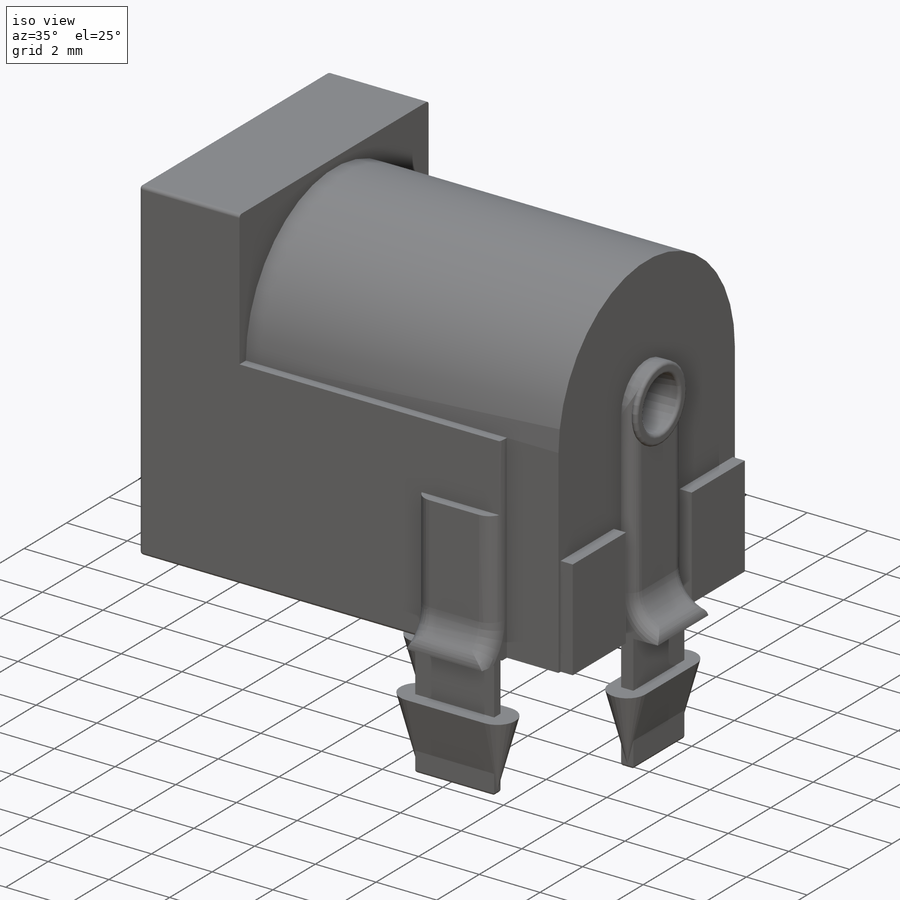
[diagram: iso view]
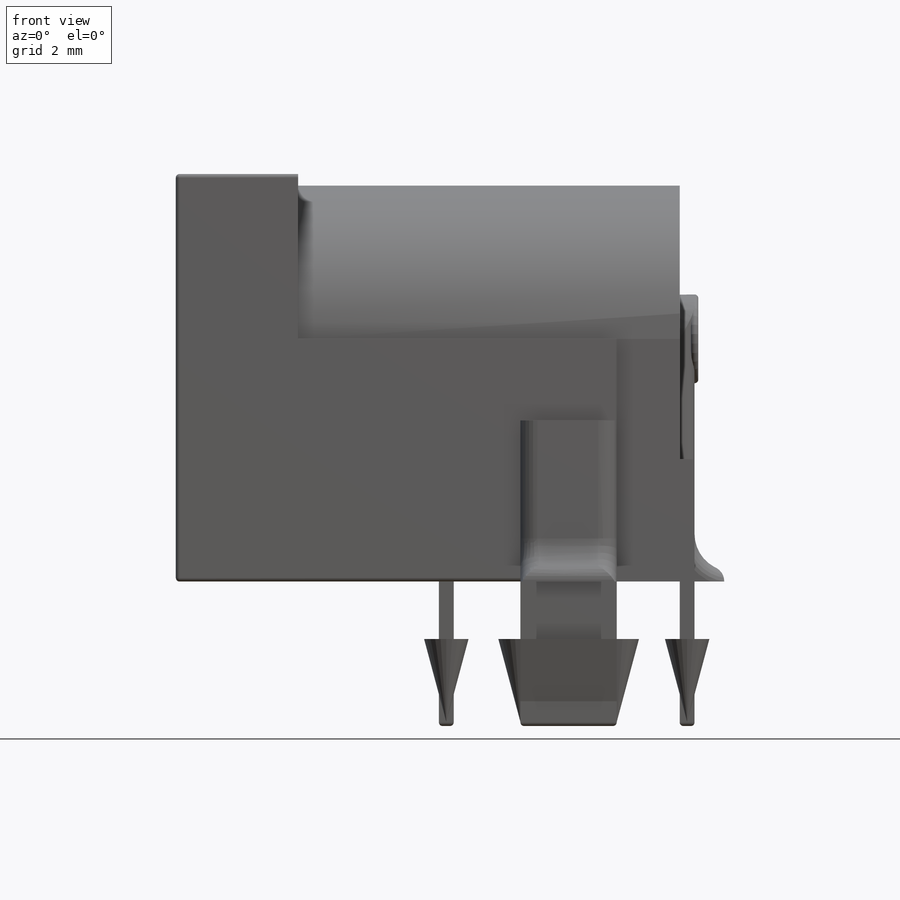
[diagram: front view]
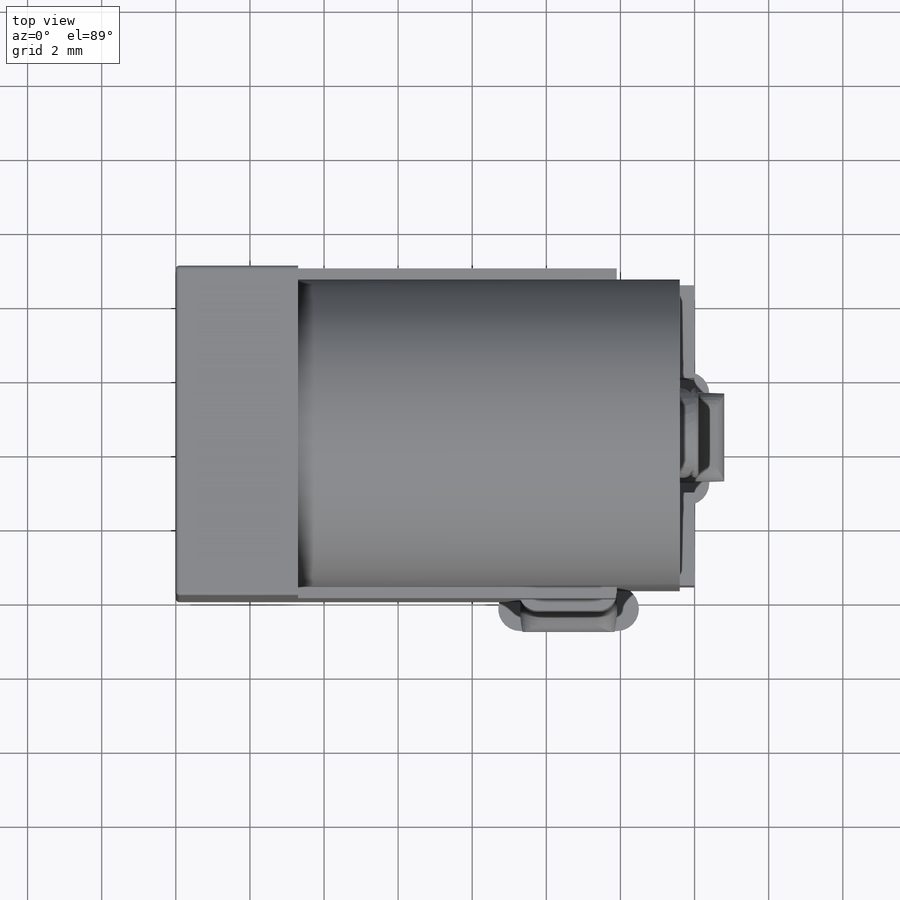
[diagram: top view]
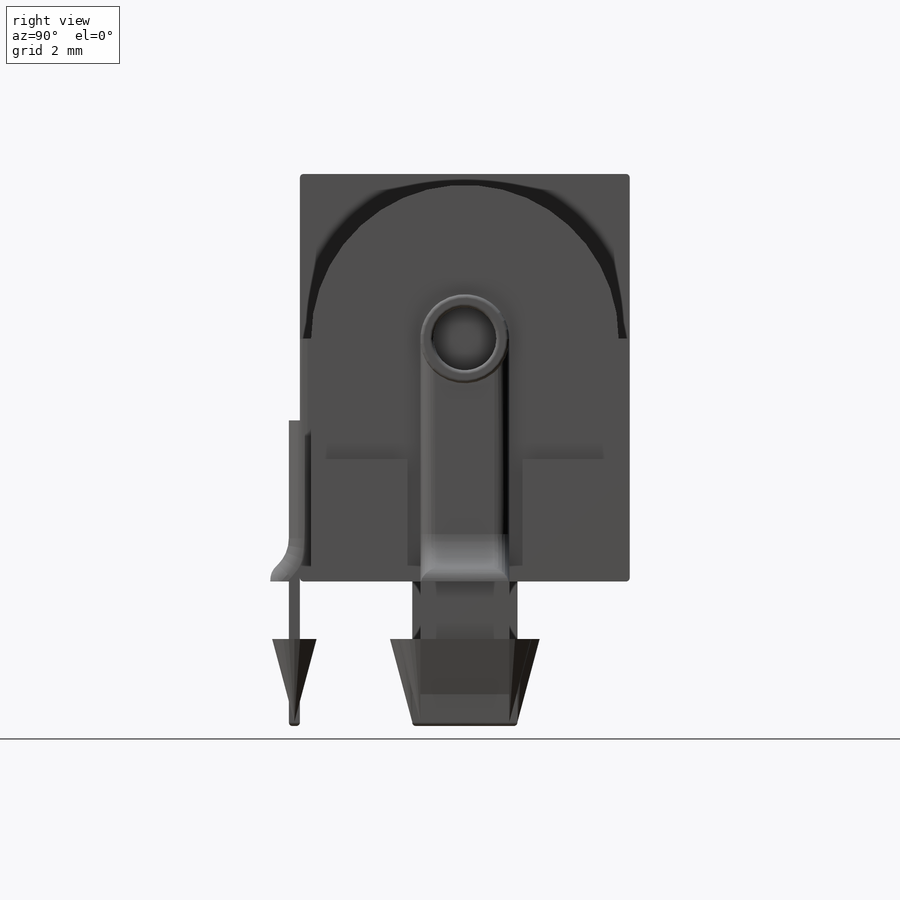
[diagram: right view]
SOLIDWORKS PART (.sldprt)
format: sldprt  version: not decoded by parser v0  size: 676,352 bytes
history: native  units: mm
features: sketch x15, extrude x11, fillet x8, plane x5, cut_extrude x4, material x1 (+10 scaffold rows collapsed)
feature tree (54):
  scaffold x10  (default folders/planes/origin — collapsed)
  material  "Material <not specified>"
  plane  "Plan de face"
  plane  "Plan de dessus"
  plane  "Plan de droite"
  sketch  "Esquisse1"  dims[D1=8.9mm D2=13.6mm]
  extrude  "Boss.-Extru.1"  Depth=11mm
  sketch  "Esquisse2"  dims[c1.D1=6.3mm c1.D3=6.3mm c1.D2=1.3mm c2.D3=4.45mm]
  cut_extrude  "Enlèv. mat.-Extru.1"  Depth=9.4mm
  sketch  "Esquisse3"  dims[D1=1.7mm]
  extrude  "Boss.-Extru.2"  Depth=7.9mm
  fillet  "Congé1"  Radius=0.85mm
  fillet  "Congé2"  Radius=0.1mm
  sketch  "Esquisse5"  dims[D1=0.3mm D2=0.3mm]
  cut_extrude  "Enlèv. mat.-Extru.3"  Depth=10.3mm
  sketch  "Esquisse6"
  cut_extrude  "Enlèv. mat.-Extru.4"  Depth=1.7mm
  sketch  "Esquisse8"  dims[D1=2.4mm D2=0.0mm]
  extrude  "Boss.-Extru.3"  Depth=0.5mm
  plane  "Plan1"  Offset=6.55mm
  sketch  "Esquisse9"  dims[D1=0.4mm]
  extrude  "Boss.-Extru.4"  Depth=10.45mm
  sketch  "Esquisse11"  dims[D1=0.0mm]
  cut_extrude  "Enlèv. mat.-Extru.7"  Depth=1.5mm
  sketch  "Esquisse12"  dims[D1=0.1mm D2=2.5mm D3=3.3mm]
  extrude  "Boss.-Extru.5"  Depth=0.4mm
  fillet  "Congé3"  Radius=0.1mm
  sketch  "Esquisse13"  dims[D1=0.3mm]
  extrude  "Boss.-Extru.6"  Depth=0.8mm
  fillet  "Congé4"  Radius=1mm
  fillet  "Congé5"  Radius=0.4mm
  sketch  "Esquisse14"  dims[D1=0.4mm D2=6.1mm]
  extrude  "Boss.-Extru.7"  Depth=3.9mm
  sketch  "Esquisse15"  dims[D1=2.6mm D2=0.2mm D3=2.2mm]
  extrude  "Boss.-Extru.8"  Depth=0.3mm
  sketch  "Esquisse16"
  extrude  "Boss.-Extru.9"  Depth=8.05mm
  plane  "Plan3"  Offset=1.55mm
  sketch  "Esquisse17"  dims[c1.D1=0.6mm c1.D2=0.6mm c1.D3=0.6mm c2.D1=~2.840553mm]
  extrude  "Boss.-Extru.10"  Depth=2.4mm
  fillet  "Congé6"  Radius=0.1mm
  sketch  "Esquisse19"  dims[D1=2.6mm D2=0.3mm]
  extrude  "Boss.-Extru.11"  Depth=0.8mm
  fillet  "Congé7"  Radius=1mm
  fillet  "Congé8"  Radius=0.5mm
decode coverage: 36 of 38 modeling features carry decoded parameters
note: ~ marks probable driven/reference dimensions
note: suppression state not decoded; provenance and decode notes live in map.json
